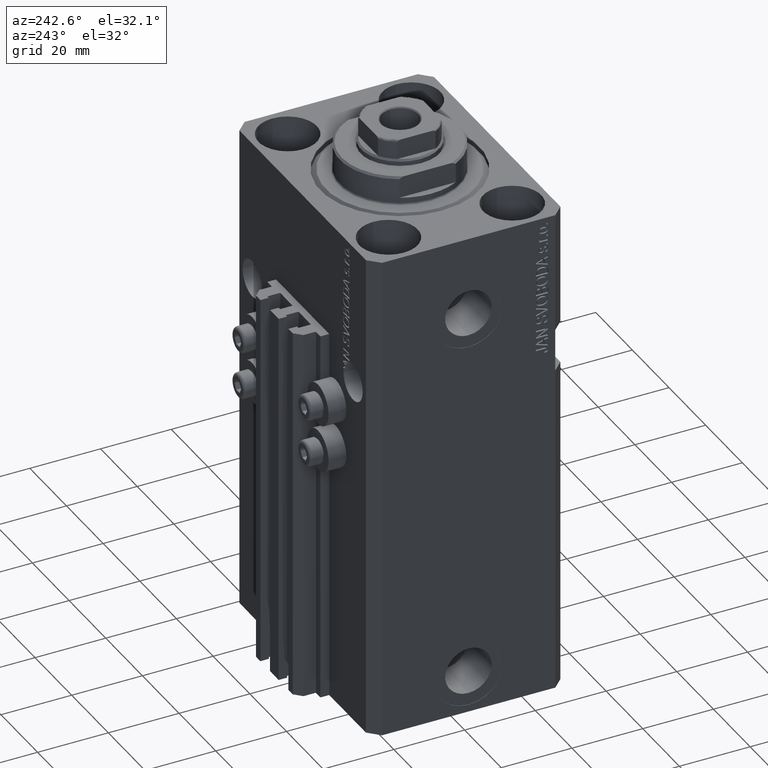
[diagram: clean part render]
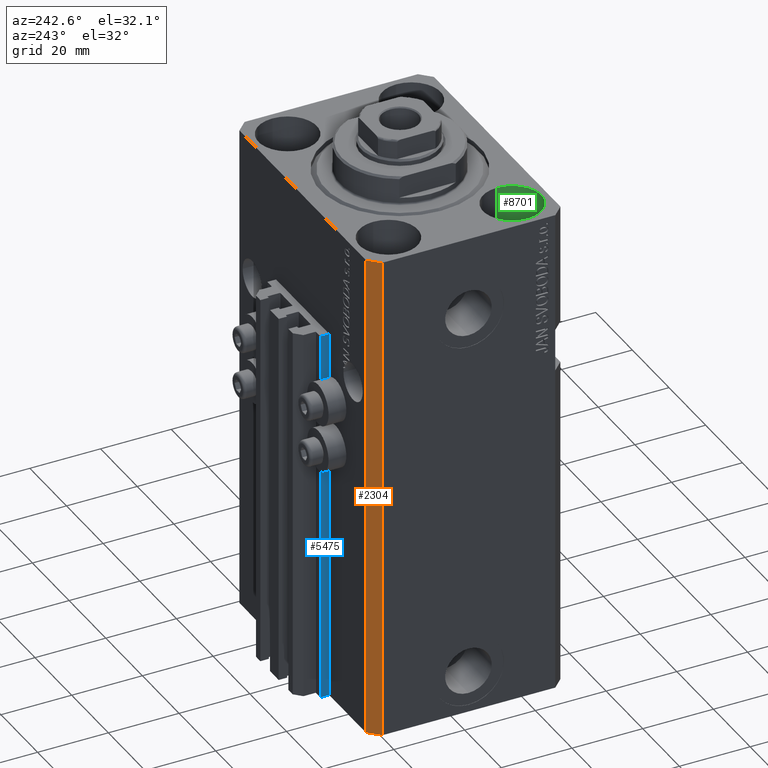
[diagram: same view with three faces highlighted in distinct colors, each labeled with its STEP entity id]
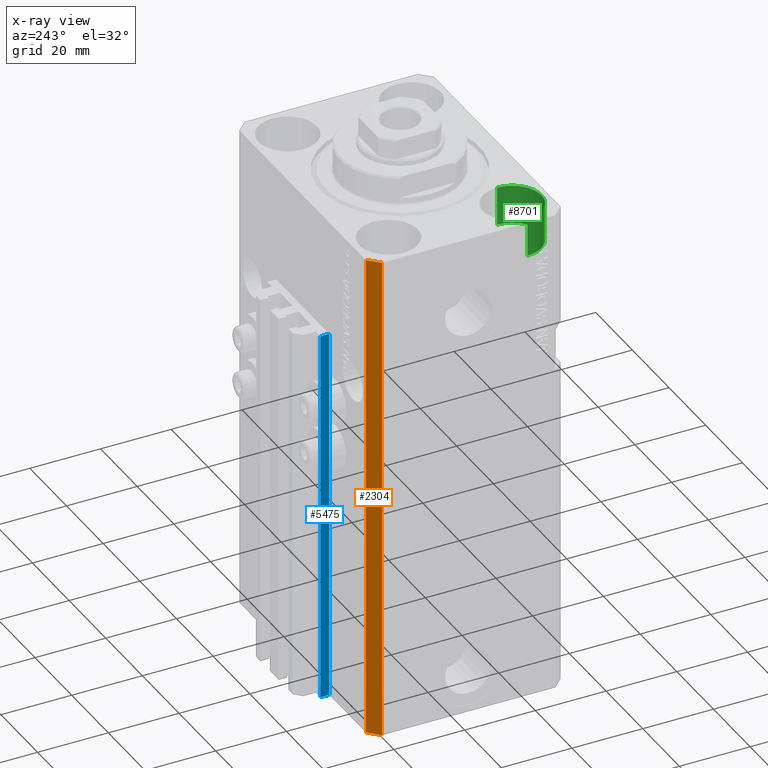
[diagram: x-ray of the same camera — body ghosted, the three highlighted faces saturated]
A machine part, auxiliary view with three faces highlighted in distinct colors.
The next image is the same camera in x-ray (body ghosted, the three faces saturated) — at least one of them is partly hidden behind the body in this view.
Their STEP definitions:

[orange] entity #2304 — the highlighted planar face has unit normal (-0.7071, 0.7071, 0).
#105 = ORIENTED_EDGE ( 'NONE', *, *, #46655, .T. ) ;
#706 = DIRECTION ( 'NONE',  ( 0.000000000000000000, 0.000000000000000000, 1.000000000000000000 ) ) ;
#1418 = LINE ( 'NONE', #15394, #3682 ) ;
#2304 = ADVANCED_FACE ( 'NONE', ( #38705 ), #18590, .T. ) ;
#3682 = VECTOR ( 'NONE', #706, 1000.000000000000000 ) ;
#4533 = VERTEX_POINT ( 'NONE', #37804 ) ;
#4640 = ORIENTED_EDGE ( 'NONE', *, *, #33850, .F. ) ;
#4642 = CARTESIAN_POINT ( 'NONE',  ( -37.49999999999999289, 24.50000000000000000, 0.000000000000000000 ) ) ;
#5576 = VERTEX_POINT ( 'NONE', #16752 ) ;
#5607 = VECTOR ( 'NONE', #37036, 1000.000000000000000 ) ;
#7469 = CARTESIAN_POINT ( 'NONE',  ( -34.49999999999999289, 27.50000000000000000, -140.0000000000000000 ) ) ;
#13906 = ORIENTED_EDGE ( 'NONE', *, *, #14560, .F. ) ;
#14560 = EDGE_CURVE ( 'NONE', #4533, #19428, #28953, .T. ) ;
#15394 = CARTESIAN_POINT ( 'NONE',  ( -37.49999999999999289, 24.50000000000000000, -140.0000000000000000 ) ) ;
#15512 = DIRECTION ( 'NONE',  ( -0.7071067811865479058, 0.7071067811865471286, 0.000000000000000000 ) ) ;
#16060 = VERTEX_POINT ( 'NONE', #4642 ) ;
#16752 = CARTESIAN_POINT ( 'NONE',  ( -37.49999999999999289, 24.50000000000000000, -140.0000000000000000 ) ) ;
#18590 = PLANE ( 'NONE',  #29805 ) ;
#19428 = VERTEX_POINT ( 'NONE', #31972 ) ;
#24388 = DIRECTION ( 'NONE',  ( -0.7071067811865471286, -0.7071067811865479058, 0.000000000000000000 ) ) ;
#25415 = CARTESIAN_POINT ( 'NONE',  ( -34.49999999999999289, 27.50000000000000000, -140.0000000000000000 ) ) ;
#25644 = DIRECTION ( 'NONE',  ( 0.000000000000000000, 0.000000000000000000, 1.000000000000000000 ) ) ;
#25905 = EDGE_CURVE ( 'NONE', #4533, #5576, #32564, .T. ) ;
#26151 = CARTESIAN_POINT ( 'NONE',  ( -34.49999999999999289, 27.50000000000000000, -140.0000000000000000 ) ) ;
#28953 = LINE ( 'NONE', #25415, #43801 ) ;
#29805 = AXIS2_PLACEMENT_3D ( 'NONE', #7469, #15512, #40821 ) ;
#31972 = CARTESIAN_POINT ( 'NONE',  ( -34.49999999999999289, 27.50000000000000000, 0.000000000000000000 ) ) ;
#32564 = LINE ( 'NONE', #26151, #5607 ) ;
#33496 = EDGE_LOOP ( 'NONE', ( #4640, #13906, #37914, #105 ) ) ;
#33850 = EDGE_CURVE ( 'NONE', #19428, #16060, #45692, .T. ) ;
#37036 = DIRECTION ( 'NONE',  ( -0.7071067811865471286, -0.7071067811865479058, 0.000000000000000000 ) ) ;
#37804 = CARTESIAN_POINT ( 'NONE',  ( -34.49999999999999289, 27.50000000000000000, -140.0000000000000000 ) ) ;
#37914 = ORIENTED_EDGE ( 'NONE', *, *, #25905, .T. ) ;
#38705 = FACE_OUTER_BOUND ( 'NONE', #33496, .T. ) ;
#40821 = DIRECTION ( 'NONE',  ( -0.7071067811865471286, -0.7071067811865479058, 0.000000000000000000 ) ) ;
#42372 = CARTESIAN_POINT ( 'NONE',  ( -34.49999999999999289, 27.50000000000000000, 0.000000000000000000 ) ) ;
#43801 = VECTOR ( 'NONE', #25644, 1000.000000000000000 ) ;
#45692 = LINE ( 'NONE', #42372, #45828 ) ;
#45828 = VECTOR ( 'NONE', #24388, 1000.000000000000000 ) ;
#46655 = EDGE_CURVE ( 'NONE', #5576, #16060, #1418, .T. ) ;

[blue] entity #5475 — the highlighted planar face has unit normal (-1, 0, 0).
#200 = EDGE_CURVE ( 'NONE', #30137, #7201, #12577, .T. ) ;
#257 = CARTESIAN_POINT ( 'NONE',  ( -14.50000000000000000, 27.50000000000000355, -33.00000000000000000 ) ) ;
#668 = DIRECTION ( 'NONE',  ( -1.000000000000000000, 0.000000000000000000, 0.000000000000000000 ) ) ;
#1074 = ORIENTED_EDGE ( 'NONE', *, *, #45752, .F. ) ;
#1180 = AXIS2_PLACEMENT_3D ( 'NONE', #12046, #668, #23154 ) ;
#2370 = DIRECTION ( 'NONE',  ( 0.000000000000000000, -1.000000000000000000, 0.000000000000000000 ) ) ;
#2599 = CARTESIAN_POINT ( 'NONE',  ( -14.50000000000000000, 29.99999999999999289, -140.0000000000000000 ) ) ;
#3095 = LINE ( 'NONE', #21103, #37432 ) ;
#5475 = ADVANCED_FACE ( 'NONE', ( #40662 ), #22917, .T. ) ;
#7201 = VERTEX_POINT ( 'NONE', #45521 ) ;
#8923 = EDGE_CURVE ( 'NONE', #7201, #35971, #29050, .T. ) ;
#9362 = EDGE_CURVE ( 'NONE', #30137, #38143, #3095, .T. ) ;
#11079 = DIRECTION ( 'NONE',  ( 0.000000000000000000, 0.000000000000000000, 1.000000000000000000 ) ) ;
#12046 = CARTESIAN_POINT ( 'NONE',  ( -14.50000000000000000, 29.99999999999999289, -140.0000000000000000 ) ) ;
#12159 = EDGE_LOOP ( 'NONE', ( #1074, #29954, #39054, #31962 ) ) ;
#12577 = LINE ( 'NONE', #2599, #19166 ) ;
#18630 = CARTESIAN_POINT ( 'NONE',  ( -14.50000000000000000, 29.99999999999999289, -33.00000000000000000 ) ) ;
#19166 = VECTOR ( 'NONE', #2370, 1000.000000000000000 ) ;
#20165 = DIRECTION ( 'NONE',  ( 0.000000000000000000, 0.000000000000000000, 1.000000000000000000 ) ) ;
#21103 = CARTESIAN_POINT ( 'NONE',  ( -14.50000000000000000, 29.99999999999999289, -140.0000000000000000 ) ) ;
#22917 = PLANE ( 'NONE',  #1180 ) ;
#23154 = DIRECTION ( 'NONE',  ( 0.000000000000000000, 0.000000000000000000, 1.000000000000000000 ) ) ;
#28166 = CARTESIAN_POINT ( 'NONE',  ( -14.50000000000000000, 29.99999999999999289, -140.0000000000000000 ) ) ;
#28624 = LINE ( 'NONE', #43066, #34671 ) ;
#29050 = LINE ( 'NONE', #43491, #33699 ) ;
#29954 = ORIENTED_EDGE ( 'NONE', *, *, #9362, .F. ) ;
#30137 = VERTEX_POINT ( 'NONE', #28166 ) ;
#31962 = ORIENTED_EDGE ( 'NONE', *, *, #8923, .T. ) ;
#33699 = VECTOR ( 'NONE', #11079, 1000.000000000000000 ) ;
#34671 = VECTOR ( 'NONE', #40374, 1000.000000000000000 ) ;
#35971 = VERTEX_POINT ( 'NONE', #257 ) ;
#37432 = VECTOR ( 'NONE', #20165, 1000.000000000000000 ) ;
#38143 = VERTEX_POINT ( 'NONE', #18630 ) ;
#39054 = ORIENTED_EDGE ( 'NONE', *, *, #200, .T. ) ;
#40374 = DIRECTION ( 'NONE',  ( 0.000000000000000000, -1.000000000000000000, 0.000000000000000000 ) ) ;
#40662 = FACE_OUTER_BOUND ( 'NONE', #12159, .T. ) ;
#43066 = CARTESIAN_POINT ( 'NONE',  ( -14.50000000000000000, 29.99999999999999289, -33.00000000000000000 ) ) ;
#43491 = CARTESIAN_POINT ( 'NONE',  ( -14.50000000000000000, 27.50000000000000355, -140.0000000000000000 ) ) ;
#45521 = CARTESIAN_POINT ( 'NONE',  ( -14.50000000000000000, 27.50000000000000355, -140.0000000000000000 ) ) ;
#45752 = EDGE_CURVE ( 'NONE', #38143, #35971, #28624, .T. ) ;

[green] entity #8701 — the highlighted cylindrical surface (edge-blend (fillet) strip) has radius 8.25 mm, axis along (0, 0, 1).
#1099 = CARTESIAN_POINT ( 'NONE',  ( -19.25000000000000355, -17.50000000000000000, -11.00000000000000000 ) ) ;
#1151 = EDGE_CURVE ( 'NONE', #10699, #10474, #25506, .T. ) ;
#1175 = AXIS2_PLACEMENT_3D ( 'NONE', #44492, #8757, #36668 ) ;
#2152 = EDGE_CURVE ( 'NONE', #10345, #10699, #6359, .T. ) ;
#3482 = CARTESIAN_POINT ( 'NONE',  ( -35.75000000000000711, -17.50000000000000000, -11.00000000000000000 ) ) ;
#4662 = DIRECTION ( 'NONE',  ( -0.000000000000000000, -0.000000000000000000, 1.000000000000000000 ) ) ;
#6359 = CIRCLE ( 'NONE', #35081, 8.250000000000000000 ) ;
#7672 = VECTOR ( 'NONE', #40380, 1000.000000000000000 ) ;
#8701 = ADVANCED_FACE ( 'NONE', ( #40221 ), #44011, .F. ) ;
#8757 = DIRECTION ( 'NONE',  ( -0.000000000000000000, -0.000000000000000000, 1.000000000000000000 ) ) ;
#9957 = CARTESIAN_POINT ( 'NONE',  ( -35.75000000000000711, -17.50000000000000000, 0.000000000000000000 ) ) ;
#10345 = VERTEX_POINT ( 'NONE', #37321 ) ;
#10474 = VERTEX_POINT ( 'NONE', #27595 ) ;
#10699 = VERTEX_POINT ( 'NONE', #26625 ) ;
#10780 = ORIENTED_EDGE ( 'NONE', *, *, #1151, .F. ) ;
#13570 = DIRECTION ( 'NONE',  ( 0.000000000000000000, 0.000000000000000000, 1.000000000000000000 ) ) ;
#16527 = EDGE_CURVE ( 'NONE', #10345, #39793, #32369, .T. ) ;
#19239 = EDGE_LOOP ( 'NONE', ( #39210, #34226, #26996, #10780 ) ) ;
#20648 = DIRECTION ( 'NONE',  ( 1.000000000000000000, 0.000000000000000000, 0.000000000000000000 ) ) ;
#22380 = EDGE_CURVE ( 'NONE', #39793, #10474, #43303, .T. ) ;
#23368 = CARTESIAN_POINT ( 'NONE',  ( -27.50000000000000355, -17.50000000000000000, -11.00000000000000000 ) ) ;
#25506 = LINE ( 'NONE', #1099, #38068 ) ;
#26625 = CARTESIAN_POINT ( 'NONE',  ( -19.25000000000000355, -17.50000000000000000, -11.00000000000000000 ) ) ;
#26996 = ORIENTED_EDGE ( 'NONE', *, *, #22380, .T. ) ;
#27595 = CARTESIAN_POINT ( 'NONE',  ( -19.25000000000000355, -17.50000000000000000, 0.000000000000000000 ) ) ;
#32369 = LINE ( 'NONE', #3482, #7672 ) ;
#34226 = ORIENTED_EDGE ( 'NONE', *, *, #16527, .T. ) ;
#35081 = AXIS2_PLACEMENT_3D ( 'NONE', #23368, #37790, #45583 ) ;
#36668 = DIRECTION ( 'NONE',  ( 1.000000000000000000, 0.000000000000000000, 0.000000000000000000 ) ) ;
#37321 = CARTESIAN_POINT ( 'NONE',  ( -35.75000000000000711, -17.50000000000000000, -11.00000000000000000 ) ) ;
#37790 = DIRECTION ( 'NONE',  ( 0.000000000000000000, 0.000000000000000000, 1.000000000000000000 ) ) ;
#38068 = VECTOR ( 'NONE', #4662, 1000.000000000000000 ) ;
#39210 = ORIENTED_EDGE ( 'NONE', *, *, #2152, .F. ) ;
#39793 = VERTEX_POINT ( 'NONE', #9957 ) ;
#40221 = FACE_OUTER_BOUND ( 'NONE', #19239, .T. ) ;
#40380 = DIRECTION ( 'NONE',  ( -0.000000000000000000, -0.000000000000000000, 1.000000000000000000 ) ) ;
#42885 = CARTESIAN_POINT ( 'NONE',  ( -27.50000000000000355, -17.50000000000000000, 0.000000000000000000 ) ) ;
#43303 = CIRCLE ( 'NONE', #46315, 8.250000000000000000 ) ;
#44011 = CYLINDRICAL_SURFACE ( 'NONE', #1175, 8.250000000000000000 ) ;
#44492 = CARTESIAN_POINT ( 'NONE',  ( -27.50000000000000355, -17.50000000000000000, -11.00000000000000000 ) ) ;
#45583 = DIRECTION ( 'NONE',  ( 1.000000000000000000, 0.000000000000000000, 0.000000000000000000 ) ) ;
#46315 = AXIS2_PLACEMENT_3D ( 'NONE', #42885, #13570, #20648 ) ;